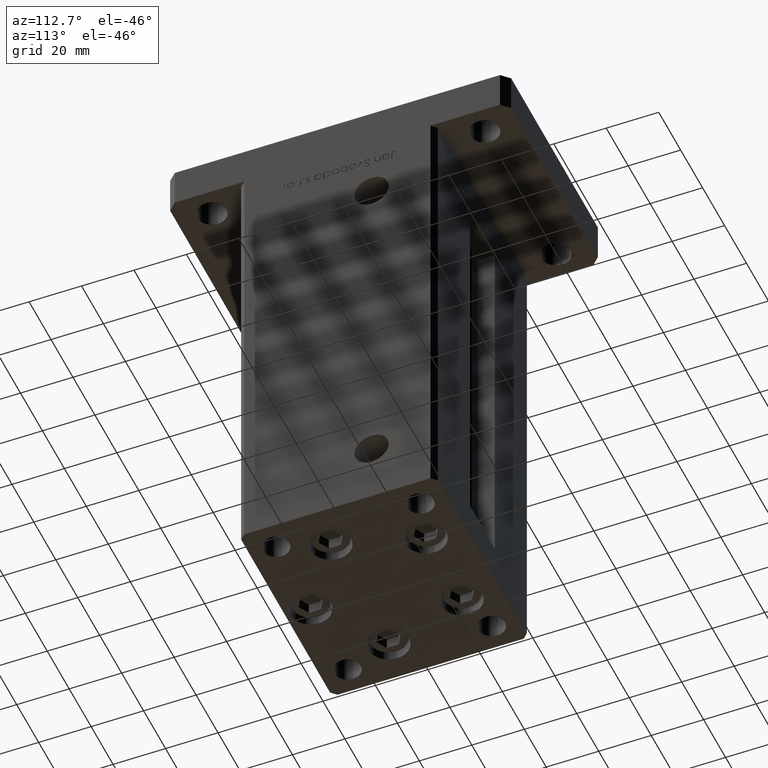
[diagram: clean part render]
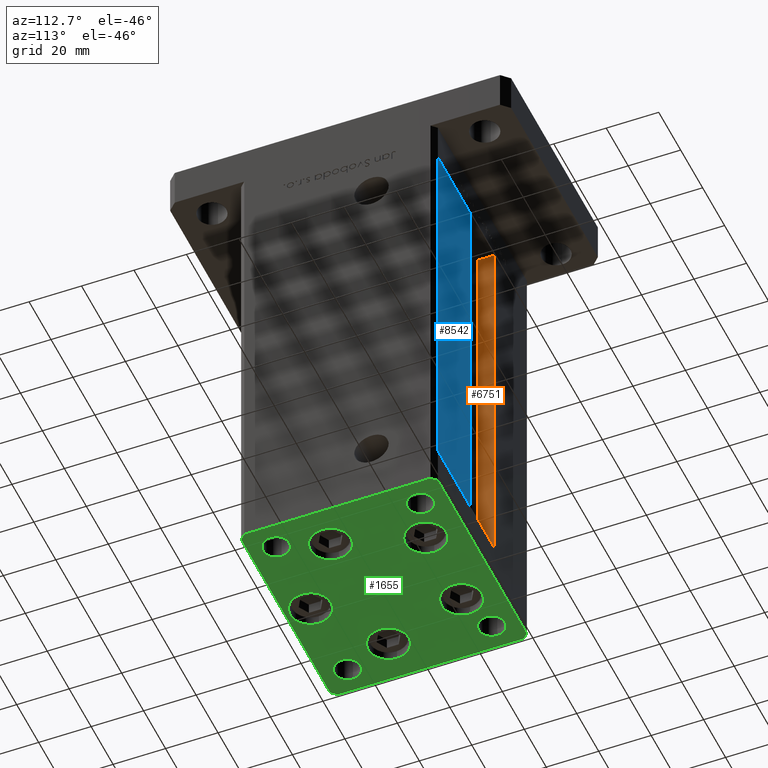
[diagram: same view with three faces highlighted in distinct colors, each labeled with its STEP entity id]
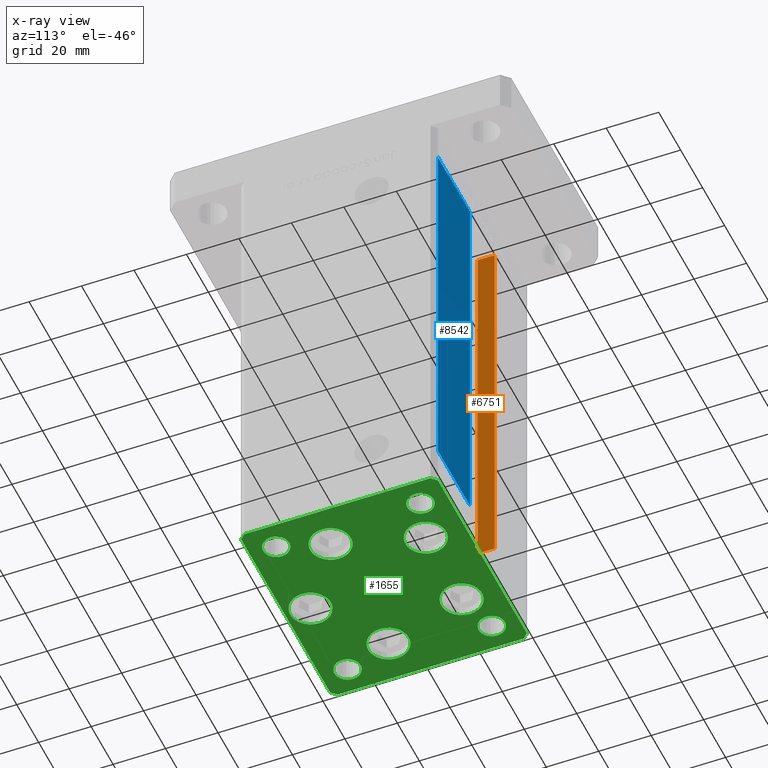
[diagram: x-ray of the same camera — body ghosted, the three highlighted faces saturated]
A machine part, auxiliary view with three faces highlighted in distinct colors.
The next image is the same camera in x-ray (body ghosted, the three faces saturated) — at least one of them is partly hidden behind the body in this view.
Their STEP definitions:

[orange] entity #6751 — the highlighted planar face has unit normal (-1, 0, 0).
#192 = CARTESIAN_POINT ( 'NONE',  ( -11.25000000000000000, 37.50000000000000000, 0.000000000000000000 ) ) ;
#1683 = ORIENTED_EDGE ( 'NONE', *, *, #32678, .F. ) ;
#1808 = LINE ( 'NONE', #13976, #44121 ) ;
#2742 = VECTOR ( 'NONE', #17858, 1000.000000000000000 ) ;
#2890 = CARTESIAN_POINT ( 'NONE',  ( -11.25000000000000000, 37.50000000000000000, 0.000000000000000000 ) ) ;
#6751 = ADVANCED_FACE ( 'NONE', ( #10703 ), #48419, .F. ) ;
#9574 = VERTEX_POINT ( 'NONE', #14837 ) ;
#10363 = EDGE_CURVE ( 'NONE', #52512, #15354, #12394, .T. ) ;
#10703 = FACE_OUTER_BOUND ( 'NONE', #34433, .T. ) ;
#12394 = LINE ( 'NONE', #32477, #15050 ) ;
#12917 = ORIENTED_EDGE ( 'NONE', *, *, #39109, .F. ) ;
#13976 = CARTESIAN_POINT ( 'NONE',  ( -11.25000000000000000, 0.000000000000000000, 148.5000000000000000 ) ) ;
#14837 = CARTESIAN_POINT ( 'NONE',  ( -11.25000000000000000, 30.99999999999999289, 148.5000000000000000 ) ) ;
#15050 = VECTOR ( 'NONE', #28942, 1000.000000000000000 ) ;
#15354 = VERTEX_POINT ( 'NONE', #48358 ) ;
#17858 = DIRECTION ( 'NONE',  ( -0.000000000000000000, -0.000000000000000000, 1.000000000000000000 ) ) ;
#19231 = AXIS2_PLACEMENT_3D ( 'NONE', #35942, #27250, #43820 ) ;
#24632 = ORIENTED_EDGE ( 'NONE', *, *, #10363, .F. ) ;
#27250 = DIRECTION ( 'NONE',  ( -1.000000000000000000, 0.000000000000000000, 0.000000000000000000 ) ) ;
#27403 = CARTESIAN_POINT ( 'NONE',  ( -11.25000000000000000, 37.50000000000000000, 148.5000000000000000 ) ) ;
#27540 = LINE ( 'NONE', #2890, #51036 ) ;
#28942 = DIRECTION ( 'NONE',  ( -0.000000000000000000, -1.000000000000000000, -0.000000000000000000 ) ) ;
#30834 = VERTEX_POINT ( 'NONE', #27403 ) ;
#31065 = EDGE_CURVE ( 'NONE', #52512, #30834, #27540, .T. ) ;
#31147 = LINE ( 'NONE', #46662, #2742 ) ;
#32477 = CARTESIAN_POINT ( 'NONE',  ( -11.25000000000000000, 30.99999999999999289, 0.000000000000000000 ) ) ;
#32678 = EDGE_CURVE ( 'NONE', #9574, #30834, #1808, .T. ) ;
#34433 = EDGE_LOOP ( 'NONE', ( #12917, #24632, #52196, #1683 ) ) ;
#35942 = CARTESIAN_POINT ( 'NONE',  ( -11.25000000000000000, 30.99999999999999289, 0.000000000000000000 ) ) ;
#39109 = EDGE_CURVE ( 'NONE', #15354, #9574, #31147, .T. ) ;
#40054 = DIRECTION ( 'NONE',  ( -0.000000000000000000, -0.000000000000000000, 1.000000000000000000 ) ) ;
#43820 = DIRECTION ( 'NONE',  ( 0.000000000000000000, 0.000000000000000000, 1.000000000000000000 ) ) ;
#44121 = VECTOR ( 'NONE', #50373, 1000.000000000000000 ) ;
#46662 = CARTESIAN_POINT ( 'NONE',  ( -11.25000000000000000, 30.99999999999999289, 0.000000000000000000 ) ) ;
#48358 = CARTESIAN_POINT ( 'NONE',  ( -11.25000000000000000, 30.99999999999999289, 0.000000000000000000 ) ) ;
#48419 = PLANE ( 'NONE',  #19231 ) ;
#50373 = DIRECTION ( 'NONE',  ( 0.000000000000000000, 1.000000000000000000, 0.000000000000000000 ) ) ;
#51036 = VECTOR ( 'NONE', #40054, 1000.000000000000000 ) ;
#52196 = ORIENTED_EDGE ( 'NONE', *, *, #31065, .T. ) ;
#52512 = VERTEX_POINT ( 'NONE', #192 ) ;

[blue] entity #8542 — the highlighted planar face has unit normal (-0, -1, 0).
#261 = EDGE_CURVE ( 'NONE', #12373, #40463, #15946, .T. ) ;
#680 = VECTOR ( 'NONE', #32097, 1000.000000000000000 ) ;
#3656 = ORIENTED_EDGE ( 'NONE', *, *, #28498, .T. ) ;
#4031 = DIRECTION ( 'NONE',  ( -0.000000000000000000, -0.000000000000000000, 1.000000000000000000 ) ) ;
#4169 = VECTOR ( 'NONE', #20917, 1000.000000000000000 ) ;
#4793 = VERTEX_POINT ( 'NONE', #24306 ) ;
#6884 = CARTESIAN_POINT ( 'NONE',  ( -11.25000000000000000, 37.50000000000000000, 148.5000000000000000 ) ) ;
#7830 = CARTESIAN_POINT ( 'NONE',  ( 11.25000000000000000, 37.50000000000000000, 0.000000000000000000 ) ) ;
#8542 = ADVANCED_FACE ( 'NONE', ( #48752 ), #23223, .F. ) ;
#8734 = CARTESIAN_POINT ( 'NONE',  ( 40.50000000000000000, 37.50000000000000711, 148.5000000000000000 ) ) ;
#12373 = VERTEX_POINT ( 'NONE', #21151 ) ;
#14460 = CARTESIAN_POINT ( 'NONE',  ( 40.50000000000000000, 37.50000000000000711, 0.000000000000000000 ) ) ;
#15946 = LINE ( 'NONE', #7830, #23511 ) ;
#20917 = DIRECTION ( 'NONE',  ( -0.000000000000000000, -0.000000000000000000, -1.000000000000000000 ) ) ;
#21029 = EDGE_LOOP ( 'NONE', ( #50282, #24217, #49784, #3656 ) ) ;
#21151 = CARTESIAN_POINT ( 'NONE',  ( 11.25000000000000000, 37.50000000000000000, 0.000000000000000000 ) ) ;
#22456 = DIRECTION ( 'NONE',  ( -1.000000000000000000, 2.372271420139223331E-16, 0.000000000000000000 ) ) ;
#23223 = PLANE ( 'NONE',  #27141 ) ;
#23511 = VECTOR ( 'NONE', #4031, 1000.000000000000000 ) ;
#24217 = ORIENTED_EDGE ( 'NONE', *, *, #261, .T. ) ;
#24306 = CARTESIAN_POINT ( 'NONE',  ( 40.50000000000000000, 37.50000000000000711, 148.5000000000000000 ) ) ;
#27141 = AXIS2_PLACEMENT_3D ( 'NONE', #52011, #43607, #52810 ) ;
#28498 = EDGE_CURVE ( 'NONE', #4793, #33785, #49439, .T. ) ;
#30347 = LINE ( 'NONE', #38254, #41699 ) ;
#32097 = DIRECTION ( 'NONE',  ( 1.000000000000000000, 0.000000000000000000, 0.000000000000000000 ) ) ;
#33785 = VERTEX_POINT ( 'NONE', #14460 ) ;
#38254 = CARTESIAN_POINT ( 'NONE',  ( -11.25000000000000000, 37.50000000000000000, 0.000000000000000000 ) ) ;
#40463 = VERTEX_POINT ( 'NONE', #43854 ) ;
#41699 = VECTOR ( 'NONE', #22456, 1000.000000000000000 ) ;
#42720 = EDGE_CURVE ( 'NONE', #33785, #12373, #30347, .T. ) ;
#43607 = DIRECTION ( 'NONE',  ( -2.372271420139223331E-16, -1.000000000000000000, 0.000000000000000000 ) ) ;
#43854 = CARTESIAN_POINT ( 'NONE',  ( 11.24999999999999289, 37.50000000000000000, 148.5000000000000000 ) ) ;
#46062 = EDGE_CURVE ( 'NONE', #40463, #4793, #52996, .T. ) ;
#48752 = FACE_OUTER_BOUND ( 'NONE', #21029, .T. ) ;
#49439 = LINE ( 'NONE', #8734, #4169 ) ;
#49784 = ORIENTED_EDGE ( 'NONE', *, *, #46062, .T. ) ;
#50282 = ORIENTED_EDGE ( 'NONE', *, *, #42720, .T. ) ;
#52011 = CARTESIAN_POINT ( 'NONE',  ( -11.25000000000000000, 37.50000000000000000, 148.5000000000000000 ) ) ;
#52810 = DIRECTION ( 'NONE',  ( 1.000000000000000000, -2.372271420139223331E-16, 0.000000000000000000 ) ) ;
#52996 = LINE ( 'NONE', #6884, #680 ) ;

[green] entity #1655 — the highlighted planar face has unit normal (0, 0, -1).
#436 = CARTESIAN_POINT ( 'NONE',  ( 42.49999999999992895, 35.50000000000000000, 0.000000000000000000 ) ) ;
#544 = LINE ( 'NONE', #49071, #38499 ) ;
#715 = CIRCLE ( 'NONE', #32727, 7.750000000000000000 ) ;
#761 = CIRCLE ( 'NONE', #7647, 7.750000000000000000 ) ;
#881 = VECTOR ( 'NONE', #1035, 1000.000000000000000 ) ;
#1035 = DIRECTION ( 'NONE',  ( 9.773090005503140331E-17, -1.000000000000000000, 0.000000000000000000 ) ) ;
#1455 = AXIS2_PLACEMENT_3D ( 'NONE', #17489, #12895, #25898 ) ;
#1466 = ORIENTED_EDGE ( 'NONE', *, *, #25125, .T. ) ;
#1655 = ADVANCED_FACE ( 'NONE', ( #30513, #46812, #47076, #14757, #6369, #14225, #52212, #43545, #19078, #22892 ), #43007, .T. ) ;
#1734 = VERTEX_POINT ( 'NONE', #20429 ) ;
#1780 = EDGE_CURVE ( 'NONE', #15218, #32496, #4720, .T. ) ;
#1852 = CARTESIAN_POINT ( 'NONE',  ( -32.50000000000000000, -27.49999999999999645, 0.000000000000000000 ) ) ;
#1967 = DIRECTION ( 'NONE',  ( 1.000000000000000000, 0.000000000000000000, 0.000000000000000000 ) ) ;
#2139 = AXIS2_PLACEMENT_3D ( 'NONE', #28778, #8166, #13298 ) ;
#2665 = CIRCLE ( 'NONE', #16493, 5.000000000000000888 ) ;
#2943 = CARTESIAN_POINT ( 'NONE',  ( -34.14865316429776954, -9.333333333333337478, 0.000000000000000000 ) ) ;
#3263 = EDGE_CURVE ( 'NONE', #20154, #45392, #50423, .T. ) ;
#3293 = ORIENTED_EDGE ( 'NONE', *, *, #44568, .T. ) ;
#3375 = VERTEX_POINT ( 'NONE', #8935 ) ;
#3622 = CARTESIAN_POINT ( 'NONE',  ( 26.39865316429776954, -9.333333333333330373, 0.000000000000000000 ) ) ;
#3642 = DIRECTION ( 'NONE',  ( -0.000000000000000000, 0.000000000000000000, 1.000000000000000000 ) ) ;
#4089 = CARTESIAN_POINT ( 'NONE',  ( -26.39865316429776954, -9.333333333333337478, 0.000000000000000000 ) ) ;
#4200 = CIRCLE ( 'NONE', #16299, 5.000000000000000888 ) ;
#4329 = VERTEX_POINT ( 'NONE', #53140 ) ;
#4338 = CARTESIAN_POINT ( 'NONE',  ( 24.07291334290542650, 22.75000000000000000, 0.000000000000000000 ) ) ;
#4587 = CARTESIAN_POINT ( 'NONE',  ( -40.49999999999999289, -37.50000000000002132, 0.000000000000000000 ) ) ;
#4684 = VERTEX_POINT ( 'NONE', #7234 ) ;
#4720 = LINE ( 'NONE', #34008, #45999 ) ;
#5147 = DIRECTION ( 'NONE',  ( 1.000000000000000000, 0.000000000000000000, 0.000000000000000000 ) ) ;
#5519 = DIRECTION ( 'NONE',  ( 0.000000000000000000, -0.000000000000000000, -1.000000000000000000 ) ) ;
#6369 = FACE_BOUND ( 'NONE', #18680, .T. ) ;
#6449 = VECTOR ( 'NONE', #16231, 1000.000000000000000 ) ;
#6730 = CARTESIAN_POINT ( 'NONE',  ( 7.750000000000003553, -28.00000000000000000, 0.000000000000000000 ) ) ;
#6780 = ORIENTED_EDGE ( 'NONE', *, *, #38746, .F. ) ;
#7234 = CARTESIAN_POINT ( 'NONE',  ( 40.50000000000000000, -37.50000000000000711, 0.000000000000000000 ) ) ;
#7409 = ORIENTED_EDGE ( 'NONE', *, *, #13283, .T. ) ;
#7647 = AXIS2_PLACEMENT_3D ( 'NONE', #39472, #47332, #9370 ) ;
#7906 = CARTESIAN_POINT ( 'NONE',  ( 37.50000000000000000, -27.49999999999999645, 0.000000000000000000 ) ) ;
#8041 = VERTEX_POINT ( 'NONE', #7906 ) ;
#8166 = DIRECTION ( 'NONE',  ( 0.000000000000000000, -0.000000000000000000, -1.000000000000000000 ) ) ;
#8264 = LINE ( 'NONE', #49778, #26021 ) ;
#8423 = EDGE_LOOP ( 'NONE', ( #6780, #41593 ) ) ;
#8922 = LINE ( 'NONE', #4587, #6449 ) ;
#8935 = CARTESIAN_POINT ( 'NONE',  ( -42.50000000000000711, 35.49999999999997158, 0.000000000000000000 ) ) ;
#9347 = CIRCLE ( 'NONE', #39685, 5.000000000000000888 ) ;
#9370 = DIRECTION ( 'NONE',  ( 1.000000000000000000, 0.000000000000000000, 0.000000000000000000 ) ) ;
#9554 = VERTEX_POINT ( 'NONE', #26782 ) ;
#9803 = CARTESIAN_POINT ( 'NONE',  ( -7.749999999999996447, -28.00000000000000000, 0.000000000000000000 ) ) ;
#9921 = CIRCLE ( 'NONE', #31567, 7.750000000000003553 ) ;
#9968 = CIRCLE ( 'NONE', #36829, 7.750000000000003553 ) ;
#10148 = VERTEX_POINT ( 'NONE', #4338 ) ;
#10491 = CIRCLE ( 'NONE', #35631, 5.000000000000000888 ) ;
#11246 = CARTESIAN_POINT ( 'NONE',  ( -16.32291334290543006, 22.74999999999999645, 0.000000000000000000 ) ) ;
#11546 = DIRECTION ( 'NONE',  ( 0.000000000000000000, -0.000000000000000000, -1.000000000000000000 ) ) ;
#11736 = ORIENTED_EDGE ( 'NONE', *, *, #1780, .T. ) ;
#11738 = CARTESIAN_POINT ( 'NONE',  ( -32.50000000000000000, 27.50000000000000355, 0.000000000000000000 ) ) ;
#11957 = VERTEX_POINT ( 'NONE', #9803 ) ;
#12162 = CIRCLE ( 'NONE', #26865, 4.999999999999997335 ) ;
#12682 = CARTESIAN_POINT ( 'NONE',  ( 40.49999999999991473, 37.50000000000000711, 0.000000000000000000 ) ) ;
#12849 = CARTESIAN_POINT ( 'NONE',  ( -27.50000000000000000, 27.50000000000000355, 0.000000000000000000 ) ) ;
#12895 = DIRECTION ( 'NONE',  ( 0.000000000000000000, -0.000000000000000000, -1.000000000000000000 ) ) ;
#13283 = EDGE_CURVE ( 'NONE', #40517, #29455, #13337, .T. ) ;
#13298 = DIRECTION ( 'NONE',  ( 1.000000000000000000, 0.000000000000000000, 0.000000000000000000 ) ) ;
#13337 = CIRCLE ( 'NONE', #2139, 7.750000000000000000 ) ;
#13591 = EDGE_CURVE ( 'NONE', #25919, #3375, #544, .T. ) ;
#14225 = FACE_BOUND ( 'NONE', #15334, .T. ) ;
#14391 = EDGE_CURVE ( 'NONE', #19595, #4684, #8922, .T. ) ;
#14757 = FACE_BOUND ( 'NONE', #47733, .T. ) ;
#15014 = ORIENTED_EDGE ( 'NONE', *, *, #15562, .T. ) ;
#15218 = VERTEX_POINT ( 'NONE', #436 ) ;
#15273 = EDGE_CURVE ( 'NONE', #10148, #9554, #9921, .T. ) ;
#15334 = EDGE_LOOP ( 'NONE', ( #37017, #20392 ) ) ;
#15562 = EDGE_CURVE ( 'NONE', #9554, #10148, #9968, .T. ) ;
#15799 = DIRECTION ( 'NONE',  ( 1.000000000000000000, 0.000000000000000000, 0.000000000000000000 ) ) ;
#15999 = CARTESIAN_POINT ( 'NONE',  ( -37.50000000000000711, -27.49999999999999645, 0.000000000000000000 ) ) ;
#16231 = DIRECTION ( 'NONE',  ( 1.000000000000000000, 1.713307136767217096E-16, 0.000000000000000000 ) ) ;
#16299 = AXIS2_PLACEMENT_3D ( 'NONE', #36744, #37554, #41342 ) ;
#16493 = AXIS2_PLACEMENT_3D ( 'NONE', #1852, #11546, #23213 ) ;
#17489 = CARTESIAN_POINT ( 'NONE',  ( 3.429011037612589276E-15, -28.00000000000000000, 0.000000000000000000 ) ) ;
#17627 = VERTEX_POINT ( 'NONE', #26228 ) ;
#17884 = CIRCLE ( 'NONE', #47367, 7.750000000000000000 ) ;
#17943 = ORIENTED_EDGE ( 'NONE', *, *, #20314, .T. ) ;
#18204 = ORIENTED_EDGE ( 'NONE', *, *, #49034, .T. ) ;
#18680 = EDGE_LOOP ( 'NONE', ( #1466, #49008 ) ) ;
#19078 = FACE_OUTER_BOUND ( 'NONE', #19412, .T. ) ;
#19126 = CARTESIAN_POINT ( 'NONE',  ( 42.50000000000000711, -35.50000000000000000, 0.000000000000000000 ) ) ;
#19412 = EDGE_LOOP ( 'NONE', ( #40155, #40802, #33128, #47318, #11736, #24167, #31166, #46163 ) ) ;
#19593 = DIRECTION ( 'NONE',  ( 0.000000000000000000, -0.000000000000000000, -1.000000000000000000 ) ) ;
#19595 = VERTEX_POINT ( 'NONE', #28665 ) ;
#19818 = EDGE_LOOP ( 'NONE', ( #27733, #25522 ) ) ;
#20154 = VERTEX_POINT ( 'NONE', #47390 ) ;
#20314 = EDGE_CURVE ( 'NONE', #37426, #11957, #31720, .T. ) ;
#20341 = CARTESIAN_POINT ( 'NONE',  ( 37.50000000000000000, 27.49999999999999645, 0.000000000000000000 ) ) ;
#20392 = ORIENTED_EDGE ( 'NONE', *, *, #3263, .F. ) ;
#20420 = DIRECTION ( 'NONE',  ( 1.000000000000000000, 0.000000000000000000, 0.000000000000000000 ) ) ;
#20429 = CARTESIAN_POINT ( 'NONE',  ( 34.14865316429776954, -9.333333333333328596, 0.000000000000000000 ) ) ;
#20606 = DIRECTION ( 'NONE',  ( 0.000000000000000000, -0.000000000000000000, -1.000000000000000000 ) ) ;
#21332 = AXIS2_PLACEMENT_3D ( 'NONE', #46980, #30679, #1967 ) ;
#21486 = VERTEX_POINT ( 'NONE', #23706 ) ;
#22436 = VERTEX_POINT ( 'NONE', #12849 ) ;
#22892 = FACE_BOUND ( 'NONE', #47155, .T. ) ;
#22918 = DIRECTION ( 'NONE',  ( 0.000000000000000000, -0.000000000000000000, -1.000000000000000000 ) ) ;
#22990 = CARTESIAN_POINT ( 'NONE',  ( -32.50000000000000000, 27.50000000000000355, 0.000000000000000000 ) ) ;
#22999 = DIRECTION ( 'NONE',  ( 1.000000000000000000, 0.000000000000000000, 0.000000000000000000 ) ) ;
#23213 = DIRECTION ( 'NONE',  ( 1.000000000000000000, 0.000000000000000000, 0.000000000000000000 ) ) ;
#23354 = EDGE_CURVE ( 'NONE', #29455, #40517, #52641, .T. ) ;
#23706 = CARTESIAN_POINT ( 'NONE',  ( -18.64865316429776954, -9.333333333333335702, 0.000000000000000000 ) ) ;
#23919 = EDGE_CURVE ( 'NONE', #8041, #45155, #48303, .T. ) ;
#23930 = DIRECTION ( 'NONE',  ( 0.7071067811865474617, 0.7071067811865474617, 0.000000000000000000 ) ) ;
#24115 = VERTEX_POINT ( 'NONE', #41522 ) ;
#24167 = ORIENTED_EDGE ( 'NONE', *, *, #47675, .T. ) ;
#24255 = EDGE_CURVE ( 'NONE', #4329, #22436, #9347, .T. ) ;
#24291 = DIRECTION ( 'NONE',  ( 0.7071067811865463515, -0.7071067811865487940, 0.000000000000000000 ) ) ;
#24391 = DIRECTION ( 'NONE',  ( -0.000000000000000000, 0.000000000000000000, 1.000000000000000000 ) ) ;
#24791 = EDGE_CURVE ( 'NONE', #52140, #1734, #17884, .T. ) ;
#24792 = DIRECTION ( 'NONE',  ( -1.172770800660376741E-15, 1.000000000000000000, 0.000000000000000000 ) ) ;
#25125 = EDGE_CURVE ( 'NONE', #29710, #21486, #43043, .T. ) ;
#25522 = ORIENTED_EDGE ( 'NONE', *, *, #47384, .T. ) ;
#25779 = CARTESIAN_POINT ( 'NONE',  ( 40.49999999999991473, 37.50000000000000711, 0.000000000000000000 ) ) ;
#25898 = DIRECTION ( 'NONE',  ( 1.000000000000000000, 0.000000000000000000, 0.000000000000000000 ) ) ;
#25919 = VERTEX_POINT ( 'NONE', #38311 ) ;
#25986 = CIRCLE ( 'NONE', #51137, 7.750000000000000000 ) ;
#26021 = VECTOR ( 'NONE', #24792, 1000.000000000000000 ) ;
#26024 = DIRECTION ( 'NONE',  ( 1.000000000000000000, 0.000000000000000000, 0.000000000000000000 ) ) ;
#26228 = CARTESIAN_POINT ( 'NONE',  ( -42.50000000000000000, -35.50000000000000711, 0.000000000000000000 ) ) ;
#26782 = CARTESIAN_POINT ( 'NONE',  ( 8.572913342905422951, 22.75000000000000000, 0.000000000000000000 ) ) ;
#26865 = AXIS2_PLACEMENT_3D ( 'NONE', #53535, #3642, #20420 ) ;
#27013 = CIRCLE ( 'NONE', #52171, 4.999999999999997335 ) ;
#27058 = DIRECTION ( 'NONE',  ( 0.000000000000000000, -0.000000000000000000, -1.000000000000000000 ) ) ;
#27733 = ORIENTED_EDGE ( 'NONE', *, *, #24791, .T. ) ;
#27828 = EDGE_LOOP ( 'NONE', ( #15014, #47217 ) ) ;
#28360 = LINE ( 'NONE', #44926, #37447 ) ;
#28665 = CARTESIAN_POINT ( 'NONE',  ( -40.49999999999999289, -37.50000000000002132, 0.000000000000000000 ) ) ;
#28703 = DIRECTION ( 'NONE',  ( -1.000000000000000000, -3.426614273534436165E-16, 0.000000000000000000 ) ) ;
#28762 = EDGE_LOOP ( 'NONE', ( #36870, #3293 ) ) ;
#28778 = CARTESIAN_POINT ( 'NONE',  ( -16.32291334290543006, 22.74999999999999645, 0.000000000000000000 ) ) ;
#28902 = CARTESIAN_POINT ( 'NONE',  ( -8.572913342905431833, 22.74999999999999645, 0.000000000000000000 ) ) ;
#28995 = EDGE_LOOP ( 'NONE', ( #52684, #7409 ) ) ;
#29079 = ORIENTED_EDGE ( 'NONE', *, *, #35416, .T. ) ;
#29455 = VERTEX_POINT ( 'NONE', #42438 ) ;
#29562 = CARTESIAN_POINT ( 'NONE',  ( 32.50000000000000000, -27.49999999999999645, 0.000000000000000000 ) ) ;
#29710 = VERTEX_POINT ( 'NONE', #2943 ) ;
#30249 = DIRECTION ( 'NONE',  ( -0.000000000000000000, 0.000000000000000000, 1.000000000000000000 ) ) ;
#30467 = CARTESIAN_POINT ( 'NONE',  ( 16.32291334290542295, 22.75000000000000000, 0.000000000000000000 ) ) ;
#30503 = EDGE_CURVE ( 'NONE', #4684, #45708, #48917, .T. ) ;
#30513 = FACE_BOUND ( 'NONE', #28995, .T. ) ;
#30679 = DIRECTION ( 'NONE',  ( 0.000000000000000000, -0.000000000000000000, -1.000000000000000000 ) ) ;
#30772 = DIRECTION ( 'NONE',  ( 1.000000000000000000, 0.000000000000000000, 0.000000000000000000 ) ) ;
#30971 = VERTEX_POINT ( 'NONE', #15999 ) ;
#31158 = DIRECTION ( 'NONE',  ( 0.000000000000000000, -0.000000000000000000, -1.000000000000000000 ) ) ;
#31166 = ORIENTED_EDGE ( 'NONE', *, *, #13591, .T. ) ;
#31567 = AXIS2_PLACEMENT_3D ( 'NONE', #30467, #5519, #38631 ) ;
#31720 = CIRCLE ( 'NONE', #1455, 7.750000000000000000 ) ;
#32496 = VERTEX_POINT ( 'NONE', #25779 ) ;
#32615 = CARTESIAN_POINT ( 'NONE',  ( 40.50000000000000000, -37.50000000000000711, 0.000000000000000000 ) ) ;
#32727 = AXIS2_PLACEMENT_3D ( 'NONE', #47192, #31158, #26024 ) ;
#33128 = ORIENTED_EDGE ( 'NONE', *, *, #30503, .T. ) ;
#33685 = EDGE_CURVE ( 'NONE', #3375, #17627, #37103, .T. ) ;
#34008 = CARTESIAN_POINT ( 'NONE',  ( 42.49999999999992895, 35.50000000000000000, 0.000000000000000000 ) ) ;
#34272 = EDGE_CURVE ( 'NONE', #21486, #29710, #25986, .T. ) ;
#34356 = AXIS2_PLACEMENT_3D ( 'NONE', #35500, #38798, #22999 ) ;
#35147 = DIRECTION ( 'NONE',  ( 1.000000000000000000, 0.000000000000000000, 0.000000000000000000 ) ) ;
#35214 = AXIS2_PLACEMENT_3D ( 'NONE', #11246, #22918, #35147 ) ;
#35302 = CARTESIAN_POINT ( 'NONE',  ( 27.50000000000000355, -27.49999999999999645, 0.000000000000000000 ) ) ;
#35404 = VECTOR ( 'NONE', #23930, 1000.000000000000114 ) ;
#35416 = EDGE_CURVE ( 'NONE', #24115, #30971, #2665, .T. ) ;
#35491 = DIRECTION ( 'NONE',  ( 1.000000000000000000, 0.000000000000000000, 0.000000000000000000 ) ) ;
#35500 = CARTESIAN_POINT ( 'NONE',  ( -26.39865316429776954, -9.333333333333337478, 0.000000000000000000 ) ) ;
#35540 = DIRECTION ( 'NONE',  ( 1.000000000000000000, 0.000000000000000000, 0.000000000000000000 ) ) ;
#35631 = AXIS2_PLACEMENT_3D ( 'NONE', #11738, #48663, #52993 ) ;
#35638 = AXIS2_PLACEMENT_3D ( 'NONE', #45025, #24391, #35540 ) ;
#35661 = CARTESIAN_POINT ( 'NONE',  ( 0.000000000000000000, 0.000000000000000000, 0.000000000000000000 ) ) ;
#35804 = EDGE_CURVE ( 'NONE', #45392, #20154, #12162, .T. ) ;
#36639 = EDGE_CURVE ( 'NONE', #45708, #15218, #8264, .T. ) ;
#36744 = CARTESIAN_POINT ( 'NONE',  ( -32.50000000000000000, -27.49999999999999645, 0.000000000000000000 ) ) ;
#36829 = AXIS2_PLACEMENT_3D ( 'NONE', #39306, #27058, #52560 ) ;
#36870 = ORIENTED_EDGE ( 'NONE', *, *, #23919, .T. ) ;
#37017 = ORIENTED_EDGE ( 'NONE', *, *, #35804, .F. ) ;
#37103 = LINE ( 'NONE', #49842, #881 ) ;
#37197 = DIRECTION ( 'NONE',  ( 1.000000000000000000, 0.000000000000000000, 0.000000000000000000 ) ) ;
#37426 = VERTEX_POINT ( 'NONE', #6730 ) ;
#37447 = VECTOR ( 'NONE', #24291, 1000.000000000000000 ) ;
#37554 = DIRECTION ( 'NONE',  ( 0.000000000000000000, -0.000000000000000000, -1.000000000000000000 ) ) ;
#37669 = LINE ( 'NONE', #12682, #44853 ) ;
#37679 = DIRECTION ( 'NONE',  ( -0.7071067811865463515, -0.7071067811865487940, 0.000000000000000000 ) ) ;
#38311 = CARTESIAN_POINT ( 'NONE',  ( -40.50000000000000711, 37.49999999999997868, 0.000000000000000000 ) ) ;
#38499 = VECTOR ( 'NONE', #37679, 1000.000000000000000 ) ;
#38631 = DIRECTION ( 'NONE',  ( 1.000000000000000000, 0.000000000000000000, 0.000000000000000000 ) ) ;
#38746 = EDGE_CURVE ( 'NONE', #22436, #4329, #10491, .T. ) ;
#38798 = DIRECTION ( 'NONE',  ( 0.000000000000000000, -0.000000000000000000, -1.000000000000000000 ) ) ;
#39306 = CARTESIAN_POINT ( 'NONE',  ( 16.32291334290542295, 22.75000000000000000, 0.000000000000000000 ) ) ;
#39472 = CARTESIAN_POINT ( 'NONE',  ( 3.429011037612589276E-15, -28.00000000000000000, 0.000000000000000000 ) ) ;
#39685 = AXIS2_PLACEMENT_3D ( 'NONE', #22990, #43643, #35491 ) ;
#40155 = ORIENTED_EDGE ( 'NONE', *, *, #40458, .T. ) ;
#40458 = EDGE_CURVE ( 'NONE', #17627, #19595, #28360, .T. ) ;
#40517 = VERTEX_POINT ( 'NONE', #28902 ) ;
#40802 = ORIENTED_EDGE ( 'NONE', *, *, #14391, .T. ) ;
#41342 = DIRECTION ( 'NONE',  ( 1.000000000000000000, 0.000000000000000000, 0.000000000000000000 ) ) ;
#41522 = CARTESIAN_POINT ( 'NONE',  ( -27.50000000000000000, -27.49999999999999645, 0.000000000000000000 ) ) ;
#41593 = ORIENTED_EDGE ( 'NONE', *, *, #24255, .F. ) ;
#42152 = DIRECTION ( 'NONE',  ( -0.7071067811865474617, 0.7071067811865474617, 0.000000000000000000 ) ) ;
#42438 = CARTESIAN_POINT ( 'NONE',  ( -24.07291334290543006, 22.74999999999999645, 0.000000000000000000 ) ) ;
#43007 = PLANE ( 'NONE',  #48587 ) ;
#43043 = CIRCLE ( 'NONE', #34356, 7.750000000000000000 ) ;
#43545 = FACE_BOUND ( 'NONE', #8423, .T. ) ;
#43643 = DIRECTION ( 'NONE',  ( -0.000000000000000000, 0.000000000000000000, 1.000000000000000000 ) ) ;
#44568 = EDGE_CURVE ( 'NONE', #45155, #8041, #27013, .T. ) ;
#44853 = VECTOR ( 'NONE', #28703, 1000.000000000000000 ) ;
#44926 = CARTESIAN_POINT ( 'NONE',  ( -42.50000000000000000, -35.50000000000000711, 0.000000000000000000 ) ) ;
#45025 = CARTESIAN_POINT ( 'NONE',  ( 32.50000000000000000, 27.49999999999999645, 0.000000000000000000 ) ) ;
#45155 = VERTEX_POINT ( 'NONE', #35302 ) ;
#45392 = VERTEX_POINT ( 'NONE', #20341 ) ;
#45708 = VERTEX_POINT ( 'NONE', #19126 ) ;
#45999 = VECTOR ( 'NONE', #42152, 1000.000000000000114 ) ;
#46163 = ORIENTED_EDGE ( 'NONE', *, *, #33685, .T. ) ;
#46812 = FACE_BOUND ( 'NONE', #27828, .T. ) ;
#46980 = CARTESIAN_POINT ( 'NONE',  ( 32.50000000000000000, -27.49999999999999645, 0.000000000000000000 ) ) ;
#47076 = FACE_BOUND ( 'NONE', #19818, .T. ) ;
#47155 = EDGE_LOOP ( 'NONE', ( #29079, #18204 ) ) ;
#47192 = CARTESIAN_POINT ( 'NONE',  ( 26.39865316429776954, -9.333333333333330373, 0.000000000000000000 ) ) ;
#47217 = ORIENTED_EDGE ( 'NONE', *, *, #15273, .T. ) ;
#47318 = ORIENTED_EDGE ( 'NONE', *, *, #36639, .T. ) ;
#47332 = DIRECTION ( 'NONE',  ( 0.000000000000000000, -0.000000000000000000, -1.000000000000000000 ) ) ;
#47367 = AXIS2_PLACEMENT_3D ( 'NONE', #3622, #19593, #15799 ) ;
#47384 = EDGE_CURVE ( 'NONE', #1734, #52140, #715, .T. ) ;
#47390 = CARTESIAN_POINT ( 'NONE',  ( 27.50000000000000355, 27.49999999999999645, 0.000000000000000000 ) ) ;
#47675 = EDGE_CURVE ( 'NONE', #32496, #25919, #37669, .T. ) ;
#47733 = EDGE_LOOP ( 'NONE', ( #50366, #17943 ) ) ;
#48303 = CIRCLE ( 'NONE', #21332, 4.999999999999997335 ) ;
#48308 = CARTESIAN_POINT ( 'NONE',  ( 18.64865316429776954, -9.333333333333330373, 0.000000000000000000 ) ) ;
#48587 = AXIS2_PLACEMENT_3D ( 'NONE', #35661, #30249, #30772 ) ;
#48663 = DIRECTION ( 'NONE',  ( -0.000000000000000000, 0.000000000000000000, 1.000000000000000000 ) ) ;
#48917 = LINE ( 'NONE', #32615, #35404 ) ;
#48924 = EDGE_CURVE ( 'NONE', #11957, #37426, #761, .T. ) ;
#49008 = ORIENTED_EDGE ( 'NONE', *, *, #34272, .T. ) ;
#49034 = EDGE_CURVE ( 'NONE', #30971, #24115, #4200, .T. ) ;
#49071 = CARTESIAN_POINT ( 'NONE',  ( -40.50000000000000711, 37.49999999999997868, 0.000000000000000000 ) ) ;
#49778 = CARTESIAN_POINT ( 'NONE',  ( 42.50000000000000711, -35.50000000000000000, 0.000000000000000000 ) ) ;
#49842 = CARTESIAN_POINT ( 'NONE',  ( -42.50000000000000711, 35.49999999999997158, 0.000000000000000000 ) ) ;
#50366 = ORIENTED_EDGE ( 'NONE', *, *, #48924, .T. ) ;
#50423 = CIRCLE ( 'NONE', #35638, 4.999999999999997335 ) ;
#50471 = DIRECTION ( 'NONE',  ( 0.000000000000000000, -0.000000000000000000, -1.000000000000000000 ) ) ;
#51137 = AXIS2_PLACEMENT_3D ( 'NONE', #4089, #20606, #37197 ) ;
#52140 = VERTEX_POINT ( 'NONE', #48308 ) ;
#52171 = AXIS2_PLACEMENT_3D ( 'NONE', #29562, #50471, #5147 ) ;
#52212 = FACE_BOUND ( 'NONE', #28762, .T. ) ;
#52560 = DIRECTION ( 'NONE',  ( 1.000000000000000000, 0.000000000000000000, 0.000000000000000000 ) ) ;
#52641 = CIRCLE ( 'NONE', #35214, 7.750000000000000000 ) ;
#52684 = ORIENTED_EDGE ( 'NONE', *, *, #23354, .T. ) ;
#52993 = DIRECTION ( 'NONE',  ( 1.000000000000000000, 0.000000000000000000, 0.000000000000000000 ) ) ;
#53140 = CARTESIAN_POINT ( 'NONE',  ( -37.50000000000000711, 27.50000000000000355, 0.000000000000000000 ) ) ;
#53535 = CARTESIAN_POINT ( 'NONE',  ( 32.50000000000000000, 27.49999999999999645, 0.000000000000000000 ) ) ;